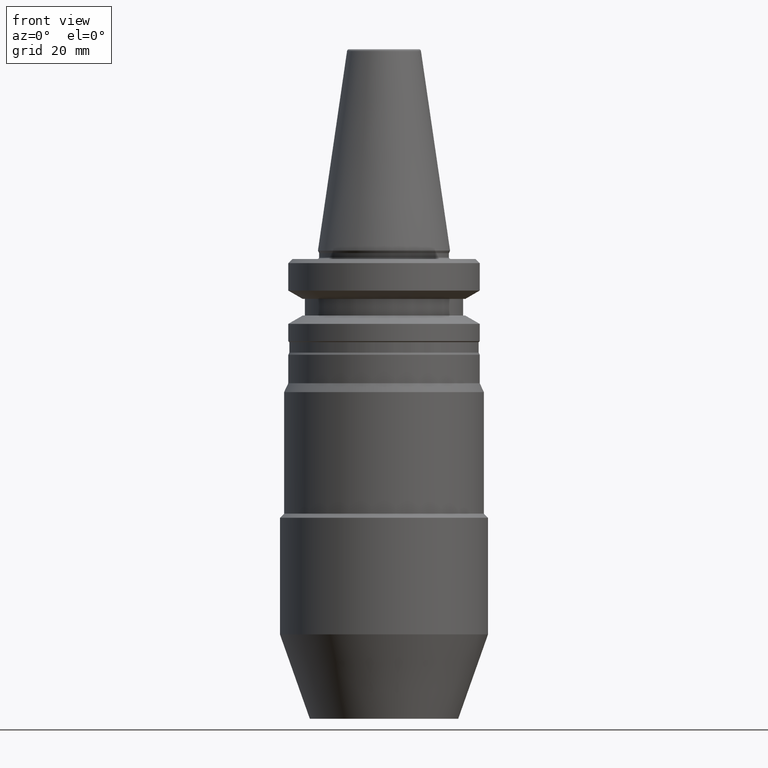
[diagram: clean part render]
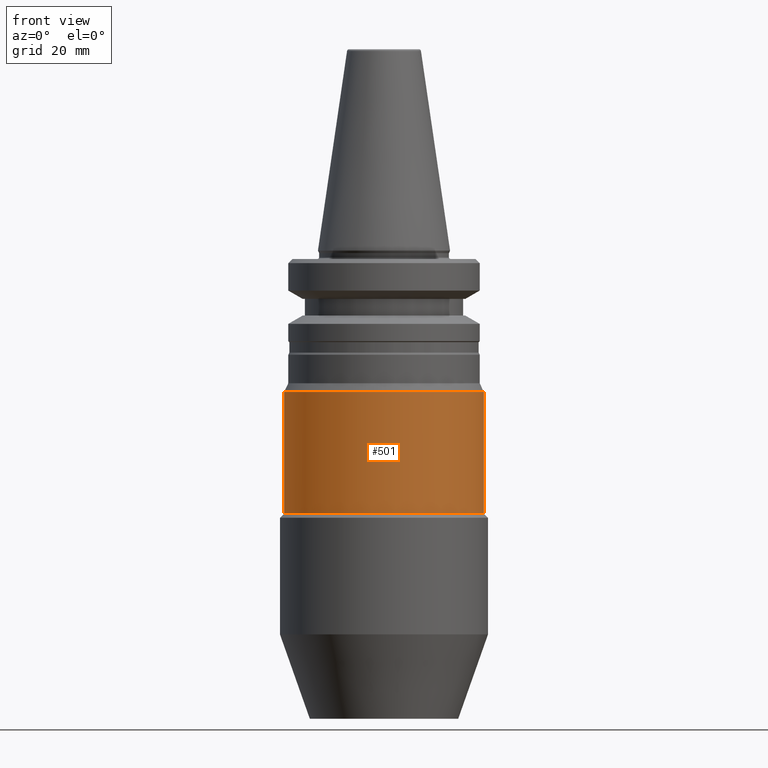
[diagram: same view with one face highlighted and labeled with its STEP entity id]
A machine part, front view. The second image highlights one B-rep face of the part: STEP entity #501.
In plain terms, the highlighted cylindrical surface (partial cylindrical patch) has radius 24 mm, axis along (-0, -0, 1).
Its self-contained STEP definition (entity closure, byte-faithful):
#8 = CARTESIAN_POINT ( 'NONE',  ( -24.00000000000002100, 2.939152317953650300E-015, -34.14999999999989200 ) ) ;
#10 = CARTESIAN_POINT ( 'NONE',  ( 0.0000000000000000000, 0.0000000000000000000, -63.34999999999983800 ) ) ;
#31 = CIRCLE ( 'NONE', #358, 24.00000000000002100 ) ;
#86 = DIRECTION ( 'NONE',  ( -0.0000000000000000000, -0.0000000000000000000, 1.000000000000000000 ) ) ;
#106 = EDGE_CURVE ( 'NONE', #844, #206, #523, .T. ) ;
#131 = CARTESIAN_POINT ( 'NONE',  ( -24.00000000000002100, 2.939152317953650300E-015, 102.5132178041659000 ) ) ;
#188 = CYLINDRICAL_SURFACE ( 'NONE', #529, 24.00000000000002100 ) ;
#190 = ORIENTED_EDGE ( 'NONE', *, *, #337, .T. ) ;
#206 = VERTEX_POINT ( 'NONE', #8 ) ;
#216 = FACE_OUTER_BOUND ( 'NONE', #463, .T. ) ;
#259 = CARTESIAN_POINT ( 'NONE',  ( 24.00000000000002100, 0.0000000000000000000, 102.5132178041659000 ) ) ;
#337 = EDGE_CURVE ( 'NONE', #844, #706, #1049, .T. ) ;
#358 = AXIS2_PLACEMENT_3D ( 'NONE', #873, #86, #1050 ) ;
#379 = DIRECTION ( 'NONE',  ( -0.0000000000000000000, -0.0000000000000000000, 1.000000000000000000 ) ) ;
#407 = DIRECTION ( 'NONE',  ( -0.0000000000000000000, -0.0000000000000000000, 1.000000000000000000 ) ) ;
#421 = CARTESIAN_POINT ( 'NONE',  ( 24.00000000000002100, 0.0000000000000000000, -34.14999999999989200 ) ) ;
#463 = EDGE_LOOP ( 'NONE', ( #966, #190, #1126, #1156 ) ) ;
#466 = CARTESIAN_POINT ( 'NONE',  ( 0.0000000000000000000, 0.0000000000000000000, 102.5132178041659000 ) ) ;
#501 = ADVANCED_FACE ( 'NONE', ( #216 ), #188, .T. ) ;
#523 = LINE ( 'NONE', #131, #535 ) ;
#529 = AXIS2_PLACEMENT_3D ( 'NONE', #466, #407, #986 ) ;
#535 = VECTOR ( 'NONE', #561, 1000.000000000000000 ) ;
#561 = DIRECTION ( 'NONE',  ( -0.0000000000000000000, -0.0000000000000000000, 1.000000000000000000 ) ) ;
#676 = EDGE_CURVE ( 'NONE', #206, #1016, #31, .T. ) ;
#706 = VERTEX_POINT ( 'NONE', #897 ) ;
#763 = DIRECTION ( 'NONE',  ( -0.0000000000000000000, -0.0000000000000000000, 1.000000000000000000 ) ) ;
#787 = EDGE_CURVE ( 'NONE', #706, #1016, #943, .T. ) ;
#844 = VERTEX_POINT ( 'NONE', #1178 ) ;
#873 = CARTESIAN_POINT ( 'NONE',  ( 0.0000000000000000000, 0.0000000000000000000, -34.14999999999989200 ) ) ;
#885 = AXIS2_PLACEMENT_3D ( 'NONE', #10, #763, #1058 ) ;
#897 = CARTESIAN_POINT ( 'NONE',  ( 24.00000000000002100, 3.000384657911015100E-015, -63.34999999999983800 ) ) ;
#943 = LINE ( 'NONE', #259, #967 ) ;
#966 = ORIENTED_EDGE ( 'NONE', *, *, #106, .F. ) ;
#967 = VECTOR ( 'NONE', #379, 1000.000000000000000 ) ;
#986 = DIRECTION ( 'NONE',  ( 1.000000000000000000, 0.0000000000000000000, 0.0000000000000000000 ) ) ;
#1016 = VERTEX_POINT ( 'NONE', #421 ) ;
#1049 = CIRCLE ( 'NONE', #885, 24.00000000000002100 ) ;
#1050 = DIRECTION ( 'NONE',  ( 1.000000000000000000, 0.0000000000000000000, 0.0000000000000000000 ) ) ;
#1058 = DIRECTION ( 'NONE',  ( 1.000000000000000000, 0.0000000000000000000, 0.0000000000000000000 ) ) ;
#1126 = ORIENTED_EDGE ( 'NONE', *, *, #787, .T. ) ;
#1156 = ORIENTED_EDGE ( 'NONE', *, *, #676, .F. ) ;
#1178 = CARTESIAN_POINT ( 'NONE',  ( -24.00000000000002100, 0.0000000000000000000, -63.34999999999983800 ) ) ;